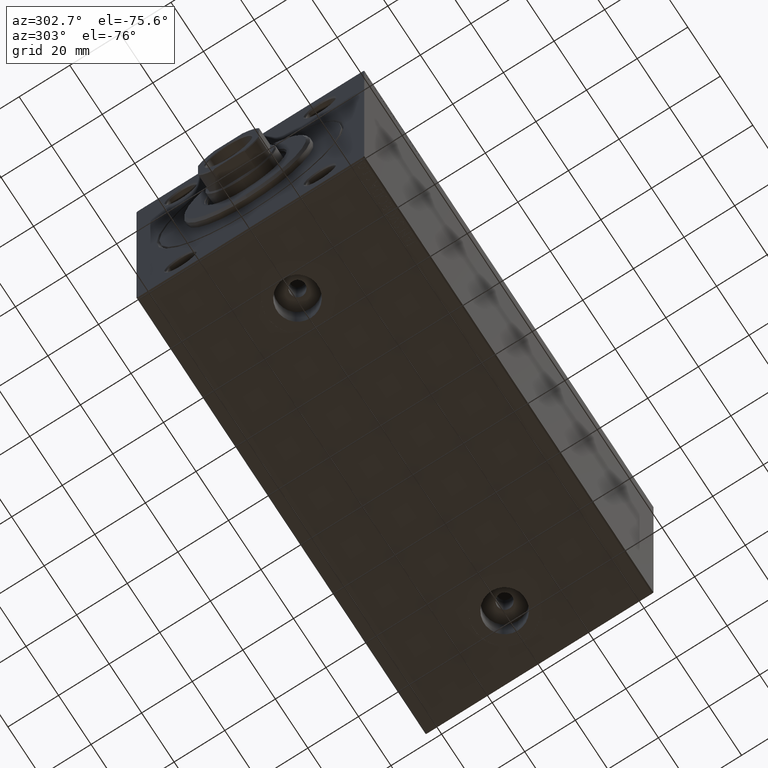
[diagram: clean part render]
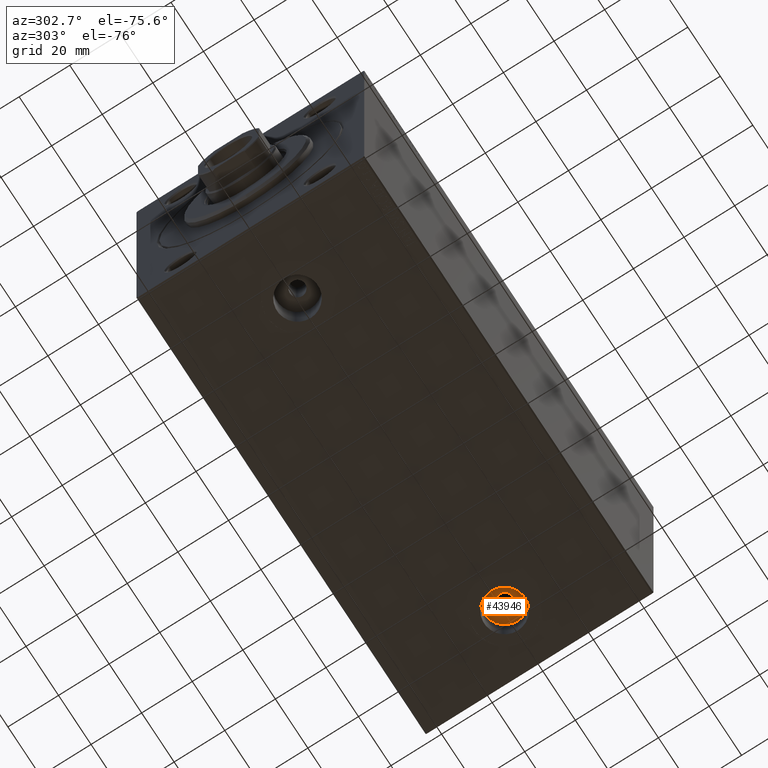
[diagram: same view with one face highlighted and labeled with its STEP entity id]
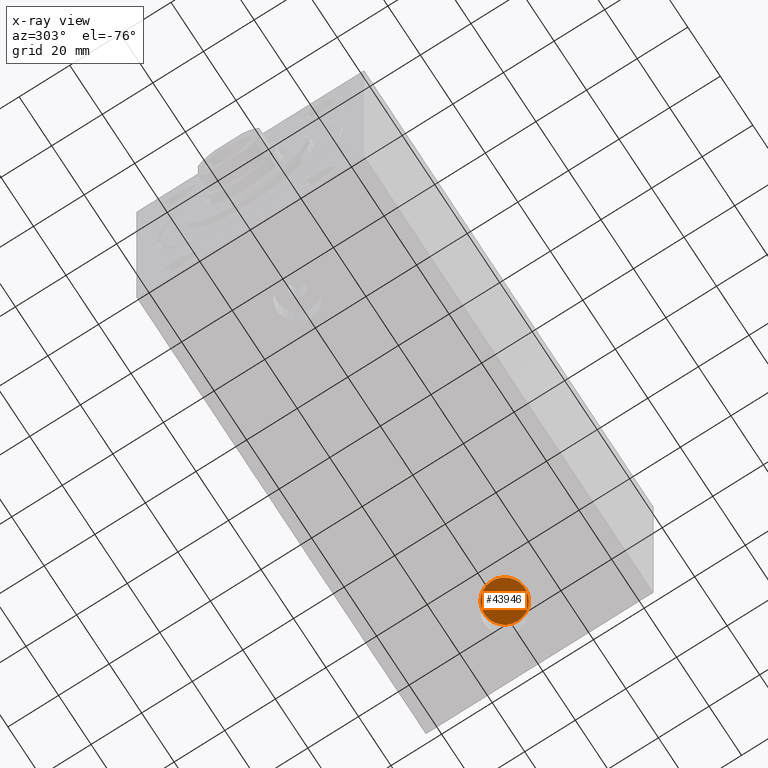
[diagram: x-ray of the same camera — body ghosted, the highlighted face saturated]
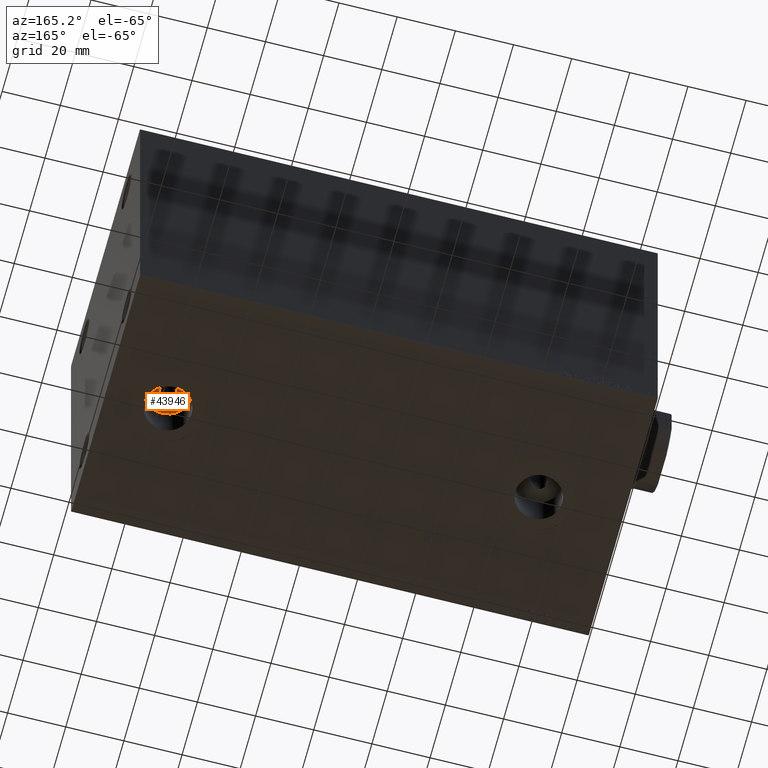
[diagram: same view with one face highlighted and labeled with its STEP entity id]
A machine part, auxiliary view. The second image highlights one B-rep face of the part: STEP entity #43946.
The next image is the same camera in x-ray: the body ghosted, the highlighted face saturated — about 0% of this face is hidden behind the body in this view.
A second angle (auxiliary view) of the same face is appended — the face is thin or edge-on in the first view.
In plain terms, the highlighted planar face has unit normal (0, 0, -1).
Its self-contained STEP definition (entity closure, byte-faithful):
#1133 = DIRECTION ( 'NONE',  ( 0.000000000000000000, 0.000000000000000000, -1.000000000000000000 ) ) ;
#1265 = CIRCLE ( 'NONE', #41133, 8.085000000000007958 ) ;
#1566 = FACE_OUTER_BOUND ( 'NONE', #5484, .T. ) ;
#2647 = ORIENTED_EDGE ( 'NONE', *, *, #36837, .T. ) ;
#2854 = DIRECTION ( 'NONE',  ( -1.000000000000000000, 0.000000000000000000, 0.000000000000000000 ) ) ;
#3472 = CARTESIAN_POINT ( 'NONE',  ( 164.5850000000000364, -1.867626407998111737E-14, -44.49999999999999289 ) ) ;
#5484 = EDGE_LOOP ( 'NONE', ( #24576, #2647 ) ) ;
#6818 = CARTESIAN_POINT ( 'NONE',  ( 148.4150000000000205, -1.966639101709175332E-14, -44.49999999999999289 ) ) ;
#7628 = DIRECTION ( 'NONE',  ( 0.000000000000000000, 0.000000000000000000, -1.000000000000000000 ) ) ;
#10272 = DIRECTION ( 'NONE',  ( 0.000000000000000000, 0.000000000000000000, -1.000000000000000000 ) ) ;
#10611 = CIRCLE ( 'NONE', #34959, 3.000000000000002665 ) ;
#10748 = ORIENTED_EDGE ( 'NONE', *, *, #27864, .F. ) ;
#11351 = DIRECTION ( 'NONE',  ( -1.000000000000000000, 0.000000000000000000, 0.000000000000000000 ) ) ;
#18797 = ORIENTED_EDGE ( 'NONE', *, *, #20358, .F. ) ;
#20358 = EDGE_CURVE ( 'NONE', #37654, #36786, #10611, .T. ) ;
#24576 = ORIENTED_EDGE ( 'NONE', *, *, #33568, .T. ) ;
#25543 = AXIS2_PLACEMENT_3D ( 'NONE', #45371, #28252, #2854 ) ;
#27864 = EDGE_CURVE ( 'NONE', #36786, #37654, #35153, .T. ) ;
#28034 = DIRECTION ( 'NONE',  ( -1.000000000000000000, 0.000000000000000000, 0.000000000000000000 ) ) ;
#28252 = DIRECTION ( 'NONE',  ( 0.000000000000000000, 0.000000000000000000, -1.000000000000000000 ) ) ;
#29328 = DIRECTION ( 'NONE',  ( 0.000000000000000000, 0.000000000000000000, -1.000000000000000000 ) ) ;
#29744 = DIRECTION ( 'NONE',  ( -1.000000000000000000, 0.000000000000000000, -0.000000000000000000 ) ) ;
#30295 = AXIS2_PLACEMENT_3D ( 'NONE', #39269, #7628, #29744 ) ;
#30927 = VERTEX_POINT ( 'NONE', #3472 ) ;
#31588 = CIRCLE ( 'NONE', #35284, 8.085000000000007958 ) ;
#32595 = CARTESIAN_POINT ( 'NONE',  ( 156.5000000000000284, -1.966639101709175332E-14, -44.49999999999999289 ) ) ;
#33021 = DIRECTION ( 'NONE',  ( -1.000000000000000000, 0.000000000000000000, 0.000000000000000000 ) ) ;
#33262 = CARTESIAN_POINT ( 'NONE',  ( 156.5000000000000284, -1.966639101709175332E-14, -44.49999999999999289 ) ) ;
#33568 = EDGE_CURVE ( 'NONE', #43153, #30927, #1265, .T. ) ;
#34069 = CARTESIAN_POINT ( 'NONE',  ( 159.5000000000000284, -1.929899697734755103E-14, -44.49999999999999289 ) ) ;
#34959 = AXIS2_PLACEMENT_3D ( 'NONE', #33262, #1133, #33021 ) ;
#35153 = CIRCLE ( 'NONE', #25543, 3.000000000000002665 ) ;
#35284 = AXIS2_PLACEMENT_3D ( 'NONE', #41919, #10272, #28034 ) ;
#35998 = CARTESIAN_POINT ( 'NONE',  ( 153.5000000000000284, -1.966639101709175332E-14, -44.49999999999999289 ) ) ;
#36786 = VERTEX_POINT ( 'NONE', #34069 ) ;
#36837 = EDGE_CURVE ( 'NONE', #30927, #43153, #31588, .T. ) ;
#37654 = VERTEX_POINT ( 'NONE', #35998 ) ;
#39269 = CARTESIAN_POINT ( 'NONE',  ( 0.000000000000000000, 0.000000000000000000, -44.49999999999999289 ) ) ;
#41133 = AXIS2_PLACEMENT_3D ( 'NONE', #32595, #29328, #11351 ) ;
#41919 = CARTESIAN_POINT ( 'NONE',  ( 156.5000000000000284, -1.966639101709175332E-14, -44.49999999999999289 ) ) ;
#42577 = EDGE_LOOP ( 'NONE', ( #18797, #10748 ) ) ;
#42746 = PLANE ( 'NONE',  #30295 ) ;
#42970 = FACE_BOUND ( 'NONE', #42577, .T. ) ;
#43153 = VERTEX_POINT ( 'NONE', #6818 ) ;
#43946 = ADVANCED_FACE ( 'NONE', ( #42970, #1566 ), #42746, .T. ) ;
#45371 = CARTESIAN_POINT ( 'NONE',  ( 156.5000000000000284, -1.966639101709175332E-14, -44.49999999999999289 ) ) ;